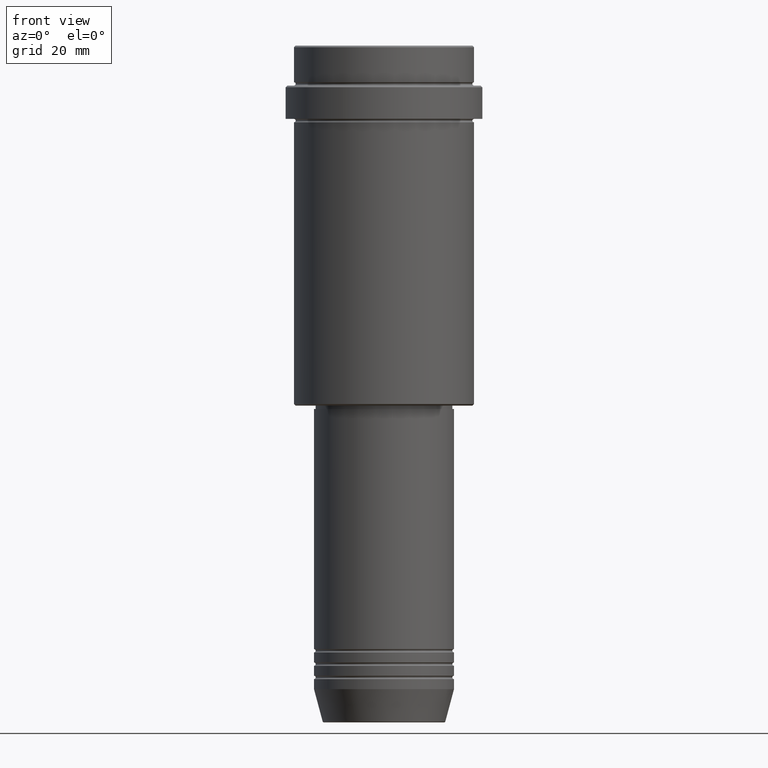
[diagram: clean part render]
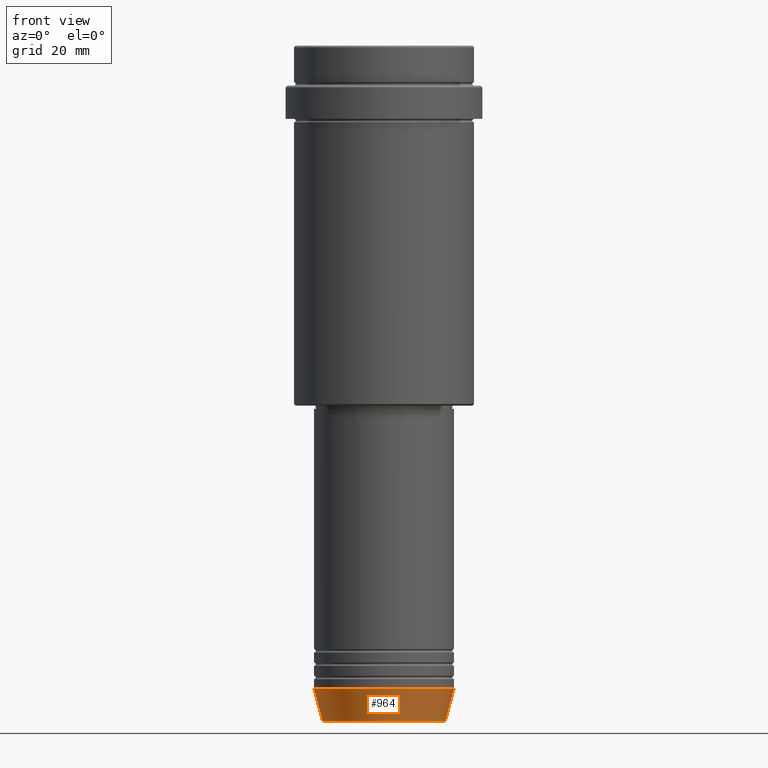
[diagram: same view with one face highlighted and labeled with its STEP entity id]
A machine part, front view. The second image highlights one B-rep face of the part: STEP entity #964.
In plain terms, the highlighted conical surface has half-angle 15 deg.
Its self-contained STEP definition (entity closure, byte-faithful):
#15 = DIRECTION ( 'NONE',  ( 1.000000000000000000, 0.000000000000000000, 0.000000000000000000 ) ) ;
#59 = ORIENTED_EDGE ( 'NONE', *, *, #1122, .T. ) ;
#75 = CONICAL_SURFACE ( 'NONE', #1348, 21.00000000000000000, 0.2617993877991499074 ) ;
#95 = VECTOR ( 'NONE', #548, 1000.000000000000114 ) ;
#117 = LINE ( 'NONE', #528, #95 ) ;
#126 = CARTESIAN_POINT ( 'NONE',  ( 0.000000000000000000, 0.000000000000000000, -193.0000000000000000 ) ) ;
#132 = EDGE_LOOP ( 'NONE', ( #580, #1260, #59, #868 ) ) ;
#161 = VERTEX_POINT ( 'NONE', #1220 ) ;
#242 = DIRECTION ( 'NONE',  ( 1.000000000000000000, 0.000000000000000000, 0.000000000000000000 ) ) ;
#248 = DIRECTION ( 'NONE',  ( -0.000000000000000000, -0.000000000000000000, 1.000000000000000000 ) ) ;
#305 = VERTEX_POINT ( 'NONE', #1053 ) ;
#387 = DIRECTION ( 'NONE',  ( 0.2588190451025211836, 0.000000000000000000, 0.9659258262890680902 ) ) ;
#409 = AXIS2_PLACEMENT_3D ( 'NONE', #441, #1002, #242 ) ;
#441 = CARTESIAN_POINT ( 'NONE',  ( 0.000000000000000000, 0.000000000000000000, -202.6294095225512990 ) ) ;
#462 = DIRECTION ( 'NONE',  ( 1.000000000000000000, 0.000000000000000000, 0.000000000000000000 ) ) ;
#525 = CARTESIAN_POINT ( 'NONE',  ( 21.00000000000000000, 0.000000000000000000, -193.0000000000000000 ) ) ;
#528 = CARTESIAN_POINT ( 'NONE',  ( -21.00000000000000000, 2.571758278209441661E-15, -193.0000000000000000 ) ) ;
#548 = DIRECTION ( 'NONE',  ( -0.2588190451025211836, 3.169619151431770488E-17, 0.9659258262890680902 ) ) ;
#580 = ORIENTED_EDGE ( 'NONE', *, *, #931, .F. ) ;
#671 = VERTEX_POINT ( 'NONE', #1388 ) ;
#682 = FACE_OUTER_BOUND ( 'NONE', #132, .T. ) ;
#774 = DIRECTION ( 'NONE',  ( -0.000000000000000000, -0.000000000000000000, 1.000000000000000000 ) ) ;
#820 = VECTOR ( 'NONE', #387, 1000.000000000000114 ) ;
#837 = VERTEX_POINT ( 'NONE', #1068 ) ;
#868 = ORIENTED_EDGE ( 'NONE', *, *, #1109, .F. ) ;
#887 = LINE ( 'NONE', #525, #820 ) ;
#929 = CIRCLE ( 'NONE', #1259, 21.00000000000000000 ) ;
#931 = EDGE_CURVE ( 'NONE', #837, #305, #117, .T. ) ;
#964 = ADVANCED_FACE ( 'NONE', ( #682 ), #75, .T. ) ;
#990 = EDGE_CURVE ( 'NONE', #837, #671, #1277, .T. ) ;
#1002 = DIRECTION ( 'NONE',  ( -0.000000000000000000, -0.000000000000000000, 1.000000000000000000 ) ) ;
#1053 = CARTESIAN_POINT ( 'NONE',  ( -21.00000000000000000, 2.571758278209441661E-15, -193.0000000000000000 ) ) ;
#1068 = CARTESIAN_POINT ( 'NONE',  ( -18.41980749484383040, 2.413767053578267064E-15, -202.6294095225512990 ) ) ;
#1099 = CARTESIAN_POINT ( 'NONE',  ( 0.000000000000000000, 0.000000000000000000, -193.0000000000000000 ) ) ;
#1109 = EDGE_CURVE ( 'NONE', #305, #161, #929, .T. ) ;
#1122 = EDGE_CURVE ( 'NONE', #671, #161, #887, .T. ) ;
#1220 = CARTESIAN_POINT ( 'NONE',  ( 21.00000000000000000, 0.000000000000000000, -193.0000000000000000 ) ) ;
#1259 = AXIS2_PLACEMENT_3D ( 'NONE', #1099, #774, #15 ) ;
#1260 = ORIENTED_EDGE ( 'NONE', *, *, #990, .T. ) ;
#1277 = CIRCLE ( 'NONE', #409, 18.41980749484383040 ) ;
#1348 = AXIS2_PLACEMENT_3D ( 'NONE', #126, #248, #462 ) ;
#1388 = CARTESIAN_POINT ( 'NONE',  ( 18.41980749484383040, 0.000000000000000000, -202.6294095225512990 ) ) ;